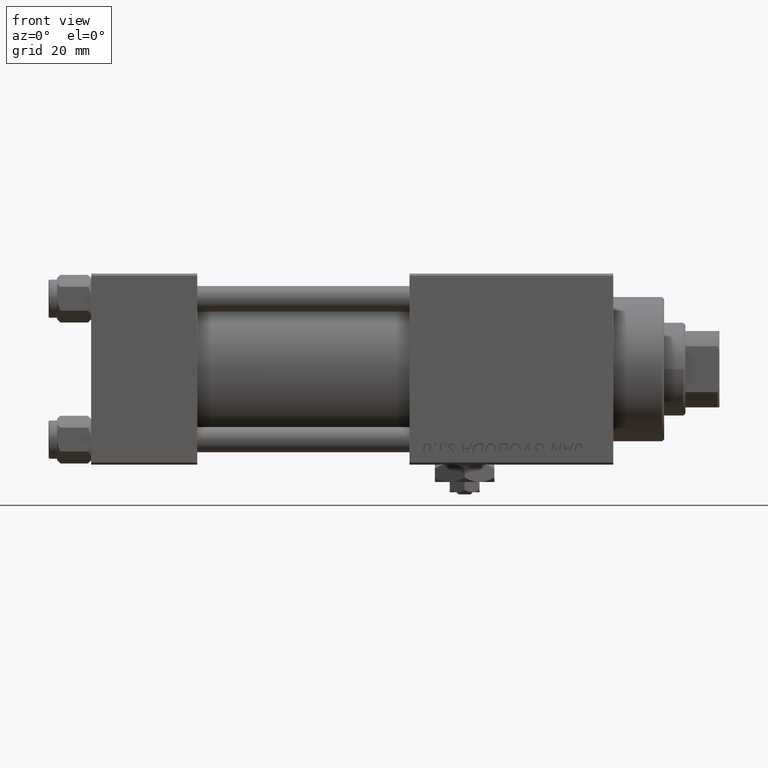
[diagram: clean part render]
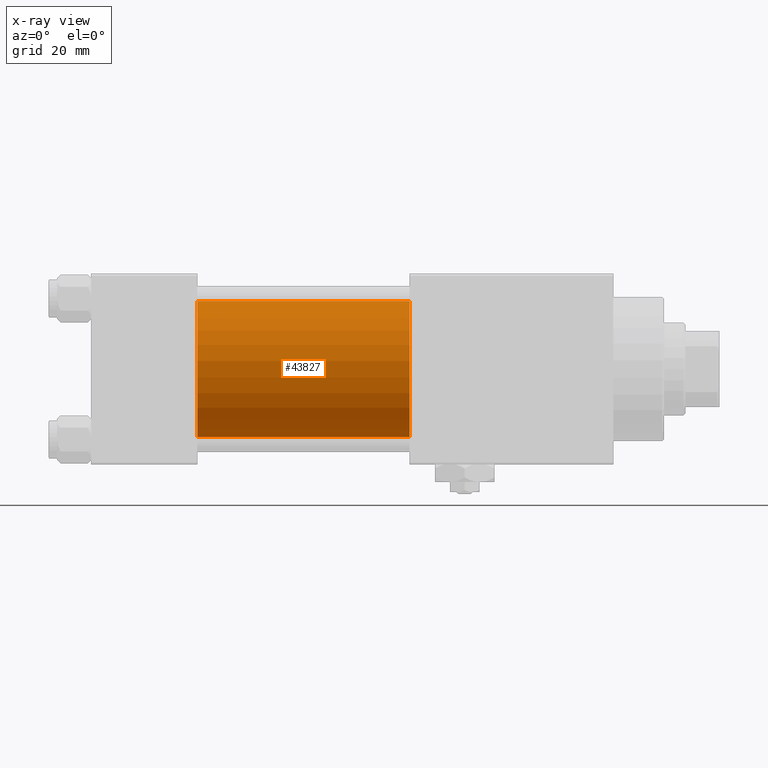
[diagram: x-ray — body ghosted, one internal face saturated and labeled with its STEP entity id]
A machine part, front view, then the same camera in x-ray: the body is ghosted and one INTERNAL B-rep face — a face not visible from any outside direction — is saturated and labeled: STEP entity #43827.
In plain terms, the highlighted cylindrical surface (partial cylindrical patch) has radius 16 mm, axis along (-1, -0, -0).
Its self-contained STEP definition (entity closure, byte-faithful):
#442 = CARTESIAN_POINT ( 'NONE',  ( 75.00000000000001421, -2.602085213965210642E-15, 16.00000000000000000 ) ) ;
#1025 = CYLINDRICAL_SURFACE ( 'NONE', #35875, 16.00000000000000000 ) ;
#1281 = VERTEX_POINT ( 'NONE', #39075 ) ;
#1484 = EDGE_CURVE ( 'NONE', #49027, #9324, #19356, .T. ) ;
#3494 = EDGE_CURVE ( 'NONE', #1281, #9324, #27515, .T. ) ;
#4148 = CARTESIAN_POINT ( 'NONE',  ( 75.00000000000001421, -6.426503353294456087E-16, -16.00000000000000000 ) ) ;
#5077 = DIRECTION ( 'NONE',  ( 0.000000000000000000, 0.000000000000000000, -1.000000000000000000 ) ) ;
#8029 = CARTESIAN_POINT ( 'NONE',  ( 25.00000000000000000, -2.602085213965210642E-15, 0.000000000000000000 ) ) ;
#8322 = LINE ( 'NONE', #442, #10082 ) ;
#9018 = VECTOR ( 'NONE', #15416, 1000.000000000000000 ) ;
#9324 = VERTEX_POINT ( 'NONE', #18914 ) ;
#10082 = VECTOR ( 'NONE', #12519, 1000.000000000000000 ) ;
#11045 = ORIENTED_EDGE ( 'NONE', *, *, #32820, .T. ) ;
#11183 = VERTEX_POINT ( 'NONE', #26623 ) ;
#12519 = DIRECTION ( 'NONE',  ( -1.000000000000000000, -0.000000000000000000, -0.000000000000000000 ) ) ;
#15416 = DIRECTION ( 'NONE',  ( -1.000000000000000000, -0.000000000000000000, -0.000000000000000000 ) ) ;
#15450 = ORIENTED_EDGE ( 'NONE', *, *, #33537, .F. ) ;
#17028 = CARTESIAN_POINT ( 'NONE',  ( 75.00000000000001421, -2.602085213965210642E-15, 0.000000000000000000 ) ) ;
#18914 = CARTESIAN_POINT ( 'NONE',  ( 25.00000000000000000, -6.426503353294456087E-16, -16.00000000000000000 ) ) ;
#19356 = LINE ( 'NONE', #4148, #9018 ) ;
#21474 = ORIENTED_EDGE ( 'NONE', *, *, #1484, .T. ) ;
#23315 = EDGE_LOOP ( 'NONE', ( #11045, #21474, #37937, #15450 ) ) ;
#25166 = DIRECTION ( 'NONE',  ( -1.000000000000000000, -0.000000000000000000, -0.000000000000000000 ) ) ;
#26623 = CARTESIAN_POINT ( 'NONE',  ( 75.00000000000001421, -2.602085213965210642E-15, 16.00000000000000000 ) ) ;
#27515 = CIRCLE ( 'NONE', #33338, 16.00000000000000000 ) ;
#29355 = FACE_OUTER_BOUND ( 'NONE', #23315, .T. ) ;
#32820 = EDGE_CURVE ( 'NONE', #11183, #49027, #40272, .T. ) ;
#33338 = AXIS2_PLACEMENT_3D ( 'NONE', #8029, #48402, #44213 ) ;
#33537 = EDGE_CURVE ( 'NONE', #11183, #1281, #8322, .T. ) ;
#35875 = AXIS2_PLACEMENT_3D ( 'NONE', #17028, #25166, #37969 ) ;
#36550 = CARTESIAN_POINT ( 'NONE',  ( 75.00000000000001421, -2.602085213965210642E-15, 0.000000000000000000 ) ) ;
#37937 = ORIENTED_EDGE ( 'NONE', *, *, #3494, .F. ) ;
#37969 = DIRECTION ( 'NONE',  ( 0.000000000000000000, 0.000000000000000000, 1.000000000000000000 ) ) ;
#39075 = CARTESIAN_POINT ( 'NONE',  ( 25.00000000000000000, -2.602085213965210642E-15, 16.00000000000000000 ) ) ;
#40272 = CIRCLE ( 'NONE', #41893, 16.00000000000000000 ) ;
#41006 = DIRECTION ( 'NONE',  ( 1.000000000000000000, 0.000000000000000000, 0.000000000000000000 ) ) ;
#41893 = AXIS2_PLACEMENT_3D ( 'NONE', #36550, #41006, #5077 ) ;
#43827 = ADVANCED_FACE ( 'NONE', ( #29355 ), #1025, .F. ) ;
#44213 = DIRECTION ( 'NONE',  ( 0.000000000000000000, 0.000000000000000000, -1.000000000000000000 ) ) ;
#48402 = DIRECTION ( 'NONE',  ( 1.000000000000000000, 0.000000000000000000, 0.000000000000000000 ) ) ;
#48607 = CARTESIAN_POINT ( 'NONE',  ( 75.00000000000001421, -6.426503353294456087E-16, -16.00000000000000000 ) ) ;
#49027 = VERTEX_POINT ( 'NONE', #48607 ) ;